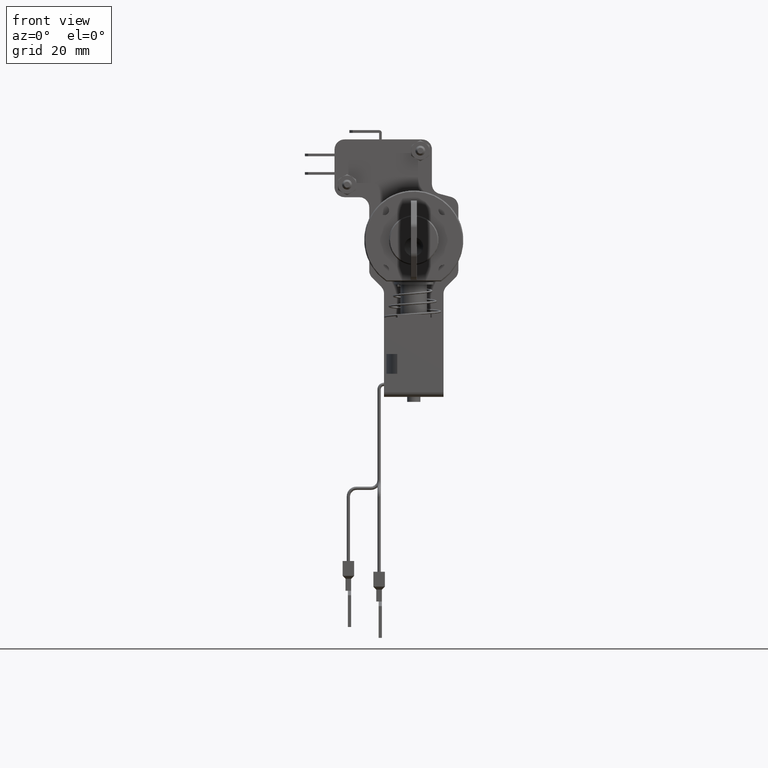
[diagram: clean part render]
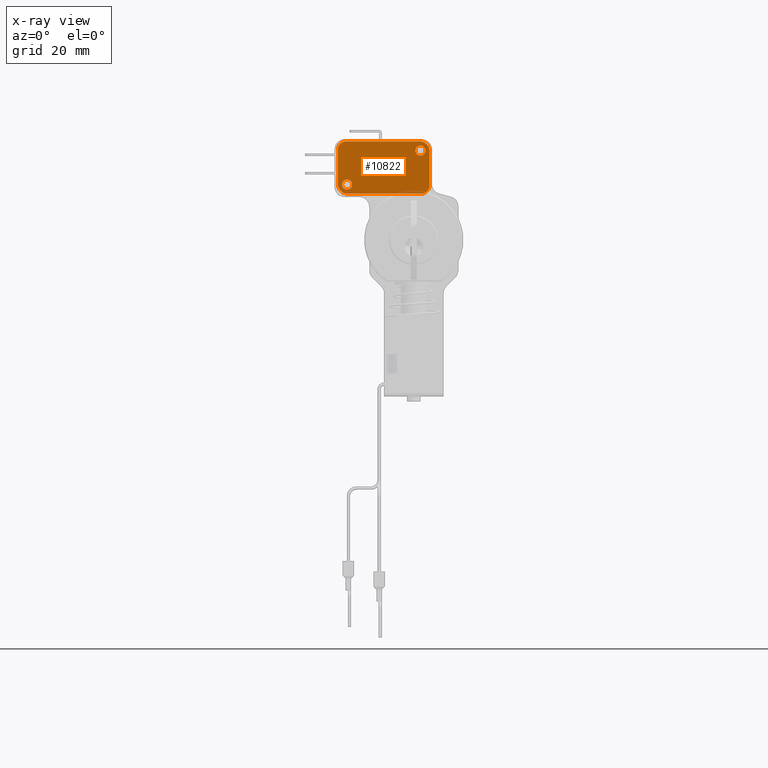
[diagram: x-ray — body ghosted, one internal face saturated and labeled with its STEP entity id]
A machine part, front view, then the same camera in x-ray: the body is ghosted and one INTERNAL B-rep face — a face not visible from any outside direction — is saturated and labeled: STEP entity #10822.
In plain terms, the highlighted face is a freeform B-spline surface patch.
Its self-contained STEP definition (entity closure, byte-faithful):
#8629=CARTESIAN_POINT('',(29.0,18.710485710549989,16.977051352788489));
#8630=VERTEX_POINT('',#8629);
#8631=CARTESIAN_POINT('',(29.0,20.199999999999999,15.300000000000001));
#8632=VERTEX_POINT('',#8631);
#8633=CARTESIAN_POINT('',(29.000000000000004,18.710485710549989,16.977051352788486));
#8634=CARTESIAN_POINT('',(29.0,18.699999999999996,16.888836180289704));
#8635=CARTESIAN_POINT('',(29.0,18.699999999999999,16.800000000000001));
#8636=CARTESIAN_POINT('',(29.0,18.699999999999999,15.300000000000004));
#8637=CARTESIAN_POINT('',(29.0,20.199999999999999,15.300000000000001));
#8645=(BOUNDED_CURVE()B_SPLINE_CURVE(2,(#8633,#8634,#8635,#8636,#8637),.UNSPECIFIED.,.F.,.U.)B_SPLINE_CURVE_WITH_KNOTS((3,2,3),(0.229562473333345,0.250000000000000,0.500000000000000),.UNSPECIFIED.)CURVE()GEOMETRIC_REPRESENTATION_ITEM()RATIONAL_B_SPLINE_CURVE((0.956026753830572,0.976055948120071,1.0,0.707106781186548,1.0))REPRESENTATION_ITEM(''));
#8646=EDGE_CURVE('',#8630,#8632,#8645,.T.);
#8687=CARTESIAN_POINT('',(29.0,21.697202197560610,16.708427189517550));
#8688=VERTEX_POINT('',#8687);
#8694=CARTESIAN_POINT('',(29.0,20.199999999999999,15.300000000000001));
#8695=CARTESIAN_POINT('',(29.000000000000007,21.611059098129857,15.300000000000004));
#8696=CARTESIAN_POINT('',(28.999999999999996,21.697202197560614,16.708427189517558));
#8704=(BOUNDED_CURVE()B_SPLINE_CURVE(2,(#8694,#8695,#8696),.UNSPECIFIED.,.F.,.U.)B_SPLINE_CURVE_WITH_KNOTS((3,3),(0.500000000000000,0.739332961969949),.UNSPECIFIED.)CURVE()GEOMETRIC_REPRESENTATION_ITEM()RATIONAL_B_SPLINE_CURVE((1.0,0.719603993601856,0.976072041090213))REPRESENTATION_ITEM(''));
#8705=EDGE_CURVE('',#8632,#8688,#8704,.T.);
#8728=CARTESIAN_POINT('',(29.0,20.199999999999999,18.300000000000001));
#8729=VERTEX_POINT('',#8728);
#8730=CARTESIAN_POINT('',(29.0,20.199999999999999,18.300000000000001));
#8731=CARTESIAN_POINT('',(29.0,18.867738212520127,18.300000000000004));
#8732=CARTESIAN_POINT('',(29.000000000000004,18.710485710549989,16.977051352788486));
#8740=(BOUNDED_CURVE()B_SPLINE_CURVE(2,(#8730,#8731,#8732),.UNSPECIFIED.,.F.,.U.)B_SPLINE_CURVE_WITH_KNOTS((3,3),(0.0,0.229562473333345),.UNSPECIFIED.)CURVE()GEOMETRIC_REPRESENTATION_ITEM()RATIONAL_B_SPLINE_CURVE((1.0,0.731050833066477,0.956026753830572))REPRESENTATION_ITEM(''));
#8741=EDGE_CURVE('',#8729,#8630,#8740,.T.);
#8743=CARTESIAN_POINT('',(29.000000000000004,21.697202197560614,16.708427189517554));
#8744=CARTESIAN_POINT('',(29.000000000000007,21.699999999999999,16.754170853868651));
#8745=CARTESIAN_POINT('',(29.0,21.699999999999999,16.800000000000001));
#8746=CARTESIAN_POINT('',(29.0,21.699999999999996,18.300000000000001));
#8747=CARTESIAN_POINT('',(29.0,20.199999999999999,18.300000000000001));
#8755=(BOUNDED_CURVE()B_SPLINE_CURVE(2,(#8743,#8744,#8745,#8746,#8747),.UNSPECIFIED.,.F.,.U.)B_SPLINE_CURVE_WITH_KNOTS((3,2,3),(0.739332961969950,0.750000000000000,1.0),.UNSPECIFIED.)CURVE()GEOMETRIC_REPRESENTATION_ITEM()RATIONAL_B_SPLINE_CURVE((0.976072041090215,0.987502787584693,1.0,0.707106781186548,1.0))REPRESENTATION_ITEM(''));
#8756=EDGE_CURVE('',#8688,#8729,#8755,.T.);
#8815=CARTESIAN_POINT('',(29.0,-3.489514289450010,27.277051352788479));
#8816=VERTEX_POINT('',#8815);
#8817=CARTESIAN_POINT('',(29.0,-2.0,25.600000000000001));
#8818=VERTEX_POINT('',#8817);
#8819=CARTESIAN_POINT('',(29.000000000000004,-3.489514289450010,27.277051352788479));
#8820=CARTESIAN_POINT('',(29.000000000000004,-3.500000000000000,27.188836180289702));
#8821=CARTESIAN_POINT('',(29.0,-3.500000000000000,27.100000000000001));
#8822=CARTESIAN_POINT('',(29.0,-3.499999999999999,25.600000000000001));
#8823=CARTESIAN_POINT('',(29.0,-2.0,25.600000000000001));
#8831=(BOUNDED_CURVE()B_SPLINE_CURVE(2,(#8819,#8820,#8821,#8822,#8823),.UNSPECIFIED.,.F.,.U.)B_SPLINE_CURVE_WITH_KNOTS((3,2,3),(0.229562473333346,0.250000000000000,0.500000000000000),.UNSPECIFIED.)CURVE()GEOMETRIC_REPRESENTATION_ITEM()RATIONAL_B_SPLINE_CURVE((0.956026753830573,0.976055948120072,1.0,0.707106781186548,1.0))REPRESENTATION_ITEM(''));
#8832=EDGE_CURVE('',#8816,#8818,#8831,.T.);
#8873=CARTESIAN_POINT('',(29.0,-0.502797802439382,27.008427189517551));
#8874=VERTEX_POINT('',#8873);
#8880=CARTESIAN_POINT('',(29.0,-2.0,25.600000000000001));
#8881=CARTESIAN_POINT('',(29.000000000000007,-0.588940901870142,25.599999999999994));
#8882=CARTESIAN_POINT('',(28.999999999999996,-0.502797802439382,27.008427189517555));
#8890=(BOUNDED_CURVE()B_SPLINE_CURVE(2,(#8880,#8881,#8882),.UNSPECIFIED.,.F.,.U.)B_SPLINE_CURVE_WITH_KNOTS((3,3),(0.500000000000000,0.739332961969949),.UNSPECIFIED.)CURVE()GEOMETRIC_REPRESENTATION_ITEM()RATIONAL_B_SPLINE_CURVE((1.0,0.719603993601856,0.976072041090213))REPRESENTATION_ITEM(''));
#8891=EDGE_CURVE('',#8818,#8874,#8890,.T.);
#8914=CARTESIAN_POINT('',(29.0,-2.0,28.600000000000001));
#8915=VERTEX_POINT('',#8914);
#8916=CARTESIAN_POINT('',(29.0,-2.0,28.600000000000001));
#8917=CARTESIAN_POINT('',(29.000000000000004,-3.332261787479866,28.600000000000005));
#8918=CARTESIAN_POINT('',(29.000000000000004,-3.489514289450010,27.277051352788479));
#8926=(BOUNDED_CURVE()B_SPLINE_CURVE(2,(#8916,#8917,#8918),.UNSPECIFIED.,.F.,.U.)B_SPLINE_CURVE_WITH_KNOTS((3,3),(0.0,0.229562473333346),.UNSPECIFIED.)CURVE()GEOMETRIC_REPRESENTATION_ITEM()RATIONAL_B_SPLINE_CURVE((1.0,0.731050833066476,0.956026753830573))REPRESENTATION_ITEM(''));
#8927=EDGE_CURVE('',#8915,#8816,#8926,.T.);
#8929=CARTESIAN_POINT('',(29.000000000000004,-0.502797802439382,27.008427189517551));
#8930=CARTESIAN_POINT('',(29.0,-0.500000000000000,27.054170853868641));
#8931=CARTESIAN_POINT('',(29.0,-0.500000000000000,27.100000000000001));
#8932=CARTESIAN_POINT('',(29.0,-0.500000000000000,28.600000000000012));
#8933=CARTESIAN_POINT('',(29.0,-2.0,28.600000000000001));
#8941=(BOUNDED_CURVE()B_SPLINE_CURVE(2,(#8929,#8930,#8931,#8932,#8933),.UNSPECIFIED.,.F.,.U.)B_SPLINE_CURVE_WITH_KNOTS((3,2,3),(0.739332961969949,0.750000000000000,1.0),.UNSPECIFIED.)CURVE()GEOMETRIC_REPRESENTATION_ITEM()RATIONAL_B_SPLINE_CURVE((0.976072041090214,0.987502787584692,1.0,0.707106781186548,1.0))REPRESENTATION_ITEM(''));
#8942=EDGE_CURVE('',#8874,#8915,#8941,.T.);
#10715=CARTESIAN_POINT('',(29.0,-6.188610207084713,30.694204670667069));
#10716=CARTESIAN_POINT('',(29.0,24.388610704187450,30.694204670667069));
#10717=CARTESIAN_POINT('',(29.0,-6.188610207084713,13.205794618547539));
#10718=CARTESIAN_POINT('',(29.0,24.388610704187450,13.205794618547539));
#10719=B_SPLINE_SURFACE_WITH_KNOTS('',1,1,((#10715,#10717),(#10716,#10718)),.UNSPECIFIED.,.F.,.F.,.U.,(2,2),(2,2),(0.0,30.577220911272160),(0.0,17.488410052119519),.UNSPECIFIED.);
#10720=CARTESIAN_POINT('',(29.0,-1.799999999999900,29.899999999999999));
#10721=VERTEX_POINT('',#10720);
#10722=CARTESIAN_POINT('',(29.0,20.500000000000000,29.899999999999999));
#10723=VERTEX_POINT('',#10722);
#10724=CARTESIAN_POINT('',(29.0,-1.799999999999900,29.899999999999999));
#10725=CARTESIAN_POINT('',(29.0,20.500000000000000,29.899999999999999));
#10726=QUASI_UNIFORM_CURVE('',1,(#10724,#10725),.UNSPECIFIED.,.F.,.U.);
#10727=EDGE_CURVE('',#10721,#10723,#10726,.T.);
#10728=ORIENTED_EDGE('',*,*,#10727,.T.);
#10729=CARTESIAN_POINT('',(29.0,23.0,27.399999999999999));
#10730=VERTEX_POINT('',#10729);
#10731=CARTESIAN_POINT('',(29.0,23.0,27.399999999999999));
#10732=CARTESIAN_POINT('',(29.0,22.999999999999993,29.900000000000009));
#10733=CARTESIAN_POINT('',(29.0,20.500000000000000,29.899999999999999));
#10741=(BOUNDED_CURVE()B_SPLINE_CURVE(2,(#10731,#10732,#10733),.UNSPECIFIED.,.F.,.U.)CURVE()GEOMETRIC_REPRESENTATION_ITEM()QUASI_UNIFORM_CURVE()RATIONAL_B_SPLINE_CURVE((1.0,0.707106781186548,1.0))REPRESENTATION_ITEM(''));
#10742=EDGE_CURVE('',#10730,#10723,#10741,.T.);
#10743=ORIENTED_EDGE('',*,*,#10742,.F.);
#10744=CARTESIAN_POINT('',(29.0,23.0,17.0));
#10745=VERTEX_POINT('',#10744);
#10746=CARTESIAN_POINT('',(29.0,23.0,27.399999999999999));
#10747=CARTESIAN_POINT('',(29.0,23.0,17.0));
#10748=QUASI_UNIFORM_CURVE('',1,(#10746,#10747),.UNSPECIFIED.,.F.,.U.);
#10749=EDGE_CURVE('',#10730,#10745,#10748,.T.);
#10750=ORIENTED_EDGE('',*,*,#10749,.T.);
#10751=CARTESIAN_POINT('',(29.0,20.0,14.0));
#10752=VERTEX_POINT('',#10751);
#10753=CARTESIAN_POINT('',(29.0,20.0,14.0));
#10754=CARTESIAN_POINT('',(29.0,22.999999999999993,13.999999999999998));
#10755=CARTESIAN_POINT('',(29.0,23.0,17.0));
#10763=(BOUNDED_CURVE()B_SPLINE_CURVE(2,(#10753,#10754,#10755),.UNSPECIFIED.,.F.,.U.)CURVE()GEOMETRIC_REPRESENTATION_ITEM()QUASI_UNIFORM_CURVE()RATIONAL_B_SPLINE_CURVE((1.0,0.707106781186548,1.0))REPRESENTATION_ITEM(''));
#10764=EDGE_CURVE('',#10752,#10745,#10763,.T.);
#10765=ORIENTED_EDGE('',*,*,#10764,.F.);
#10766=CARTESIAN_POINT('',(29.0,-2.300000000000000,14.0));
#10767=VERTEX_POINT('',#10766);
#10768=CARTESIAN_POINT('',(29.0,20.0,14.0));
#10769=CARTESIAN_POINT('',(29.0,-2.300000000000000,14.0));
#10770=QUASI_UNIFORM_CURVE('',1,(#10768,#10769),.UNSPECIFIED.,.F.,.U.);
#10771=EDGE_CURVE('',#10752,#10767,#10770,.T.);
#10772=ORIENTED_EDGE('',*,*,#10771,.T.);
#10773=CARTESIAN_POINT('',(29.0,-4.800000000000000,16.500000000000000));
#10774=VERTEX_POINT('',#10773);
#10775=CARTESIAN_POINT('',(29.0,-4.800000000000001,16.500000000000000));
#10776=CARTESIAN_POINT('',(29.0,-4.800000000000001,13.999999999999998));
#10777=CARTESIAN_POINT('',(29.0,-2.300000000000000,14.0));
#10785=(BOUNDED_CURVE()B_SPLINE_CURVE(2,(#10775,#10776,#10777),.UNSPECIFIED.,.F.,.U.)CURVE()GEOMETRIC_REPRESENTATION_ITEM()QUASI_UNIFORM_CURVE()RATIONAL_B_SPLINE_CURVE((1.0,0.707106781186548,1.0))REPRESENTATION_ITEM(''));
#10786=EDGE_CURVE('',#10774,#10767,#10785,.T.);
#10787=ORIENTED_EDGE('',*,*,#10786,.F.);
#10788=CARTESIAN_POINT('',(29.0,-4.799999999999900,26.899999999999999));
#10789=VERTEX_POINT('',#10788);
#10790=CARTESIAN_POINT('',(29.0,-4.800000000000000,16.500000000000000));
#10791=CARTESIAN_POINT('',(29.0,-4.799999999999900,26.899999999999999));
#10792=QUASI_UNIFORM_CURVE('',1,(#10790,#10791),.UNSPECIFIED.,.F.,.U.);
#10793=EDGE_CURVE('',#10774,#10789,#10792,.T.);
#10794=ORIENTED_EDGE('',*,*,#10793,.T.);
#10795=CARTESIAN_POINT('',(29.0,-1.799999999999900,29.899999999999999));
#10796=CARTESIAN_POINT('',(29.0,-4.799999999999900,29.900000000000009));
#10797=CARTESIAN_POINT('',(29.0,-4.799999999999900,26.899999999999999));
#10805=(BOUNDED_CURVE()B_SPLINE_CURVE(2,(#10795,#10796,#10797),.UNSPECIFIED.,.F.,.U.)CURVE()GEOMETRIC_REPRESENTATION_ITEM()QUASI_UNIFORM_CURVE()RATIONAL_B_SPLINE_CURVE((1.0,0.707106781186548,1.0))REPRESENTATION_ITEM(''));
#10806=EDGE_CURVE('',#10721,#10789,#10805,.T.);
#10807=ORIENTED_EDGE('',*,*,#10806,.F.);
#10808=EDGE_LOOP('',(#10728,#10743,#10750,#10765,#10772,#10787,#10794,#10807));
#10809=FACE_OUTER_BOUND('',#10808,.T.);
#10810=ORIENTED_EDGE('',*,*,#8891,.T.);
#10811=ORIENTED_EDGE('',*,*,#8942,.T.);
#10812=ORIENTED_EDGE('',*,*,#8927,.T.);
#10813=ORIENTED_EDGE('',*,*,#8832,.T.);
#10814=EDGE_LOOP('',(#10810,#10811,#10812,#10813));
#10815=FACE_BOUND('',#10814,.T.);
#10816=ORIENTED_EDGE('',*,*,#8705,.T.);
#10817=ORIENTED_EDGE('',*,*,#8756,.T.);
#10818=ORIENTED_EDGE('',*,*,#8741,.T.);
#10819=ORIENTED_EDGE('',*,*,#8646,.T.);
#10820=EDGE_LOOP('',(#10816,#10817,#10818,#10819));
#10821=FACE_BOUND('',#10820,.T.);
#10822=ADVANCED_FACE('',(#10809,#10815,#10821),#10719,.T.);